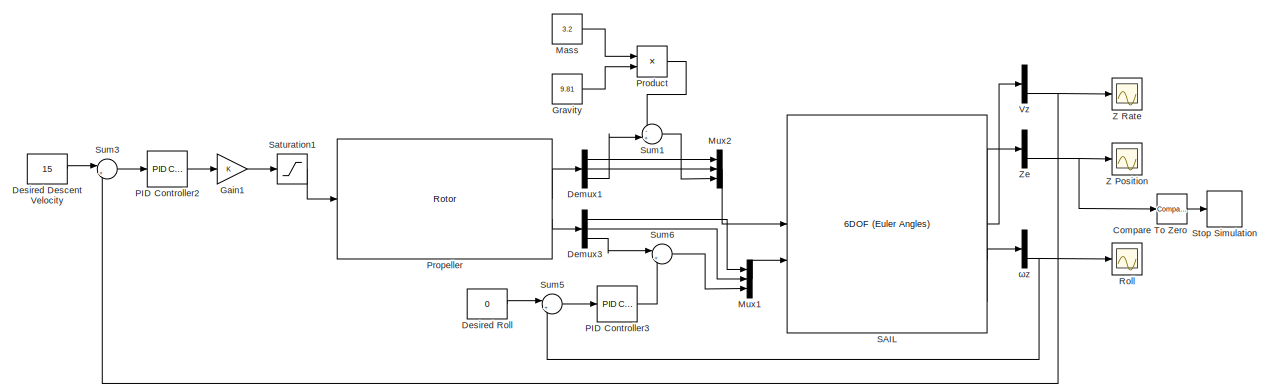
[diagram: root canvas - part 1/2, most of the canvas]
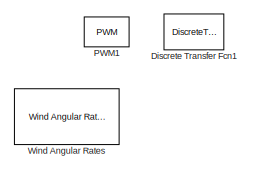
[diagram: root canvas - part 2/2, bottom left region]
MODEL slx_7a299f381fd4
KIND model
CONFIG AbsTol = auto
CONFIG EnableMultiTasking = off
CONFIG FixedStep = auto
CONFIG MaxStep = auto
CONFIG MinStep = auto
CONFIG RelTol = 1e-3
CONFIG SampleTimeConstraint = Unconstrained
CONFIG SolverName = VariableStepAuto
CONFIG StartTime = 0.0
CONFIG StopTime = 20
BLOCK [Reference] Compare To Zero  REF=simulink/Logic and Bit
Operations/Compare
To Zero
  SourceBlock = simulink/Logic and Bit\nOperations/Compare\nTo Zero
  SourceType = Compare To Zero
BLOCK [Demux] Demux1
  Outputs = 3
BLOCK [Demux] Demux3
  Outputs = 3
BLOCK [Constant] Desired Descent Velocity
  Value = 15
BLOCK [Constant] Desired Roll
  Value = 0
BLOCK [DiscreteTransferFcn] Discrete Transfer Fcn1
  InputPortMap = u0
BLOCK [Gain] Gain1
BLOCK [Constant] Gravity
  Value = 9.81
BLOCK [Constant] Mass
  Value = 3.2
BLOCK [Mux] Mux1
  DisplayOption = bar
  Inputs = 3
BLOCK [Mux] Mux2
  DisplayOption = bar
  Inputs = 3
BLOCK [Reference] PID Controller2  REF=slpidlib/PID Controller
  LibrarySourceBlock = simulink/Continuous/PID Controller
  SourceBlock = slpidlib/PID Controller
  SourceType = PID 1dof
BLOCK [Reference] PID Controller3  REF=slpidlib/PID Controller
  LibrarySourceBlock = simulink/Continuous/PID Controller
  SourceBlock = slpidlib/PID Controller
  SourceType = PID 1dof
BLOCK [Reference] PWM1  REF=simulink/Discontinuities/PWM
  DisableCoverage = on
  SourceBlock = simulink/Discontinuities/PWM
  SourceType = PWM
BLOCK [Product] Product
BLOCK [Reference] Propeller  REF=aerolibpropulsion2/Rotor
  LibrarySourceBlock = aerolibrotor/Rotor
  SourceBlock = aerolibpropulsion2/Rotor
  SourceType = Rotor
BLOCK [Scope] Roll
  Floating = off
  NumInputPorts = 1
  ScopeSpecificationString = Simulink.scopes.TimeScopeBlockCfg('CurrentConfiguration', extmgr.ConfigurationSet(extmgr.Configuration('Core','General UI',true),extmgr.Configuration('Core','Source UI',true),extmgr.Configuration('Sources','WiredSimulink',true,'DataLoggingVariableName','ScopeData2'),extmgr.Configuration('Visuals','Time Domain',true,'SerializedDisplays',{struct('MinYLimReal','-0.46068','MaxYLimReal','1.1623','YLabe...<+1389ch>
BLOCK [Reference] SAIL  REF=shared6dof/6DOF (Euler Angles)
  LibrarySourceBlock = aerolib6dof2/6DOF (Euler Angles)
  SourceBlock = shared6dof/6DOF (Euler Angles)
  SourceType = 6DOF EoM (Body Axis)
BLOCK [Saturate] Saturation1
  LowerLimit = 0
  UpperLimit = 100
BLOCK [Stop] Stop Simulation
BLOCK [Sum] Sum1
  Inputs = -+|
BLOCK [Sum] Sum3
  Inputs = |+-
BLOCK [Sum] Sum5
  Inputs = |+-
BLOCK [Sum] Sum6
  Inputs = |++
BLOCK [Demux] Vz
  Outputs = 3
BLOCK [Reference] Wind Angular Rates  REF=aerolibasang/Wind Angular Rates
  SourceBlock = aerolibasang/Wind Angular Rates
  SourceType = Wind Angular Rates
BLOCK [Scope] Z Position
  Floating = off
  NumInputPorts = 1
  ScopeSpecificationString = Simulink.scopes.TimeScopeBlockCfg('CurrentConfiguration', extmgr.ConfigurationSet(extmgr.Configuration('Core','General UI',true),extmgr.Configuration('Core','Source UI',true),extmgr.Configuration('Sources','WiredSimulink',true,'DataLoggingVariableName','ScopeData1'),extmgr.Configuration('Visuals','Time Domain',true,'SerializedDisplays',{struct('MinYLimReal','-50.00000','MaxYLimReal','450.00000','Y...<+1401ch>
BLOCK [Scope] Z Rate
  Floating = off
  NumInputPorts = 1
  ScopeSpecificationString = Simulink.scopes.TimeScopeBlockCfg('CurrentConfiguration', extmgr.ConfigurationSet(extmgr.Configuration('Core','General UI',true),extmgr.Configuration('Core','Source UI',true),extmgr.Configuration('Sources','WiredSimulink',true),extmgr.Configuration('Visuals','Time Domain',true,'SerializedDisplays',{struct('MinYLimReal','-67.38419','MaxYLimReal','7.48713','YLabelReal','','MinYLimMag','0.00000','Max...<+1356ch>
BLOCK [Demux] Ze
  Outputs = 3
BLOCK [Demux] ωz
  Outputs = 3
LINE Compare To Zero:1 -> Stop Simulation:1
LINE Demux1:1 -> Mux2:1
LINE Demux1:2 -> Mux2:2
LINE Demux1:3 -> Sum1:2
LINE Demux3:1 -> Mux1:1
LINE Demux3:2 -> Mux1:2
LINE Demux3:3 -> Sum6:1
LINE Desired Descent Velocity:1 -> Sum3:1
LINE Desired Roll:1 -> Sum5:1
LINE Gain1:1 -> Saturation1:1
LINE Gravity:1 -> Product:2
LINE Mass:1 -> Product:1
LINE Mux1:1 -> SAIL:2
LINE Mux2:1 -> SAIL:1
LINE PID Controller2:1 -> Gain1:1
LINE PID Controller3:1 -> Sum6:2
LINE Product:1 -> Sum1:1
LINE Propeller:1 -> Demux1:1
LINE Propeller:2 -> Demux3:1
LINE SAIL:1 -> Vz:1
LINE SAIL:2 -> Ze:1
LINE SAIL:6 -> ωz:1
LINE Saturation1:1 -> Propeller:1
LINE Sum1:1 -> Mux2:3
LINE Sum3:1 -> PID Controller2:1
LINE Sum5:1 -> PID Controller3:1
LINE Sum6:1 -> Mux1:3
NET Vz:3 -> Sum3:2, Z Rate:1
NET Ze:3 -> Compare To Zero:1, Z Position:1
NET ωz:3 -> Roll:1, Sum5:2
note: NET lines group one-source signal fan-out (src -> all destinations, sorted); 1:1 wires keep LINE
